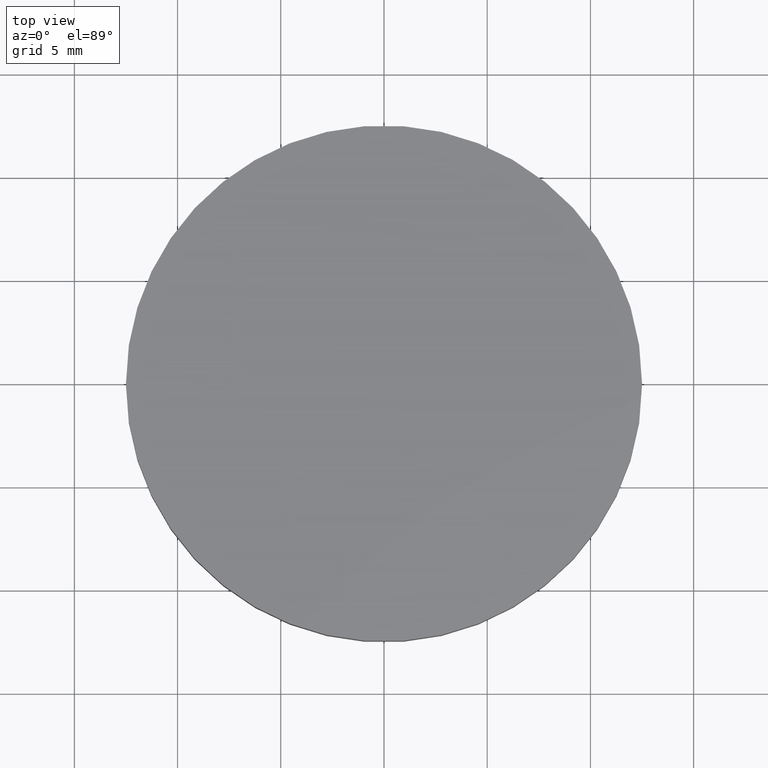
[diagram: clean part render]
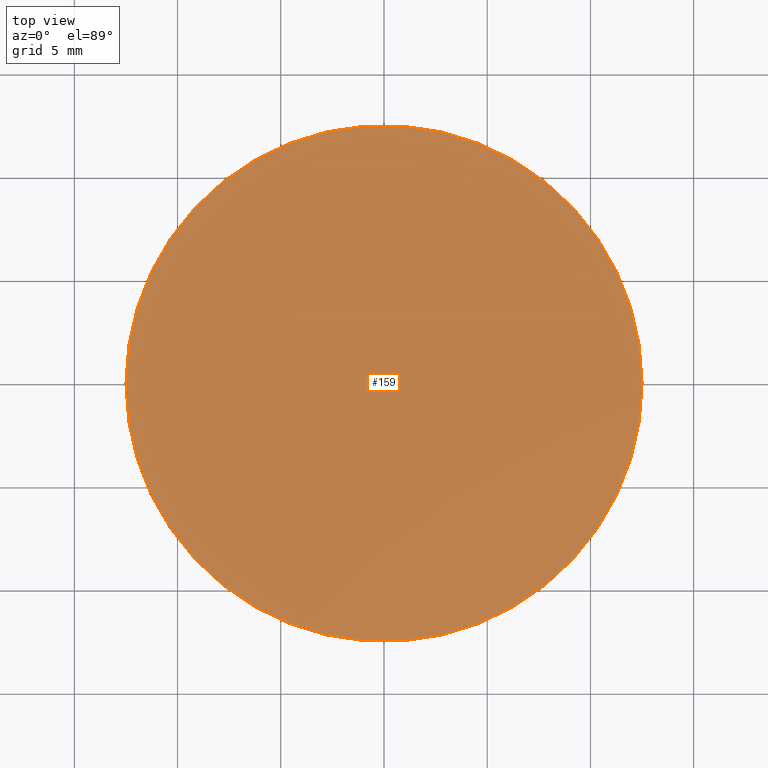
[diagram: same view with one face highlighted and labeled with its STEP entity id]
A machine part, top view. The second image highlights one B-rep face of the part: STEP entity #159.
In plain terms, the highlighted planar face has unit normal (0, 0, 1).
Its self-contained STEP definition (entity closure, byte-faithful):
#25 = AXIS2_PLACEMENT_3D ( 'NONE', #113, #59, #156 ) ;
#26 = CARTESIAN_POINT ( 'NONE',  ( 0.0000000000000000000, 0.0000000000000000000, 3.000000000000000000 ) ) ;
#28 = DIRECTION ( 'NONE',  ( 1.000000000000000000, 0.0000000000000000000, 0.0000000000000000000 ) ) ;
#39 = VERTEX_POINT ( 'NONE', #236 ) ;
#54 = CIRCLE ( 'NONE', #125, 12.50000000000000000 ) ;
#59 = DIRECTION ( 'NONE',  ( 0.0000000000000000000, 0.0000000000000000000, 1.000000000000000000 ) ) ;
#61 = DIRECTION ( 'NONE',  ( 0.0000000000000000000, 0.0000000000000000000, 1.000000000000000000 ) ) ;
#80 = PLANE ( 'NONE',  #25 ) ;
#89 = ORIENTED_EDGE ( 'NONE', *, *, #242, .T. ) ;
#97 = FACE_OUTER_BOUND ( 'NONE', #198, .T. ) ;
#98 = DIRECTION ( 'NONE',  ( 1.000000000000000000, 0.0000000000000000000, 0.0000000000000000000 ) ) ;
#99 = AXIS2_PLACEMENT_3D ( 'NONE', #26, #221, #28 ) ;
#113 = CARTESIAN_POINT ( 'NONE',  ( 0.0000000000000000000, 0.0000000000000000000, 3.000000000000000000 ) ) ;
#125 = AXIS2_PLACEMENT_3D ( 'NONE', #136, #61, #98 ) ;
#130 = VERTEX_POINT ( 'NONE', #160 ) ;
#136 = CARTESIAN_POINT ( 'NONE',  ( 0.0000000000000000000, 0.0000000000000000000, 3.000000000000000000 ) ) ;
#153 = ORIENTED_EDGE ( 'NONE', *, *, #209, .T. ) ;
#156 = DIRECTION ( 'NONE',  ( 1.000000000000000000, 0.0000000000000000000, -0.0000000000000000000 ) ) ;
#159 = ADVANCED_FACE ( 'NONE', ( #97 ), #80, .T. ) ;
#160 = CARTESIAN_POINT ( 'NONE',  ( -12.50000000000000000, 0.0000000000000000000, 3.000000000000000000 ) ) ;
#198 = EDGE_LOOP ( 'NONE', ( #89, #153 ) ) ;
#209 = EDGE_CURVE ( 'NONE', #39, #130, #54, .T. ) ;
#221 = DIRECTION ( 'NONE',  ( 0.0000000000000000000, 0.0000000000000000000, 1.000000000000000000 ) ) ;
#231 = CIRCLE ( 'NONE', #99, 12.50000000000000000 ) ;
#236 = CARTESIAN_POINT ( 'NONE',  ( 12.50000000000000000, 1.530808498934191500E-015, 3.000000000000000000 ) ) ;
#242 = EDGE_CURVE ( 'NONE', #130, #39, #231, .T. ) ;